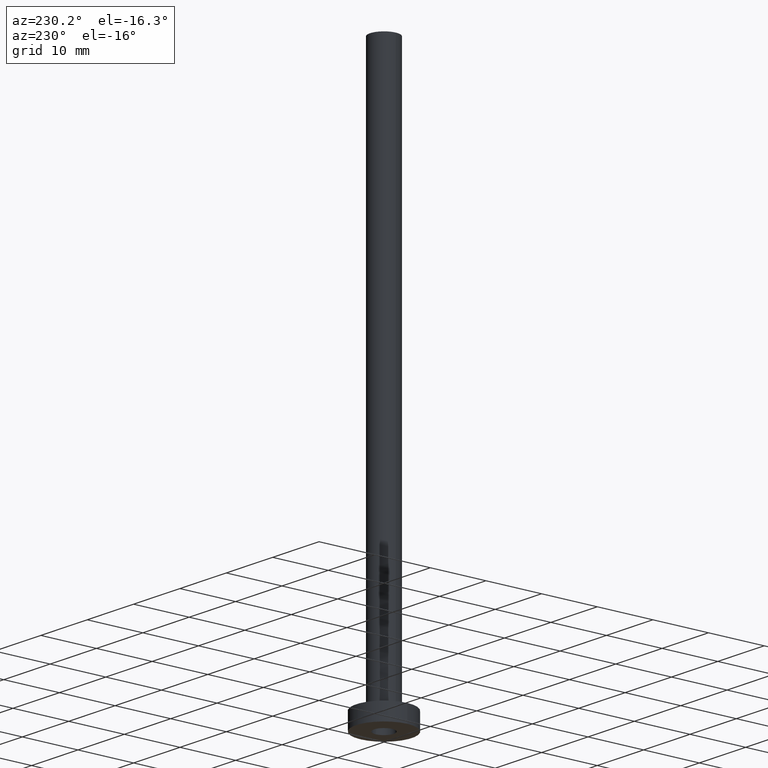
[diagram: clean part render]
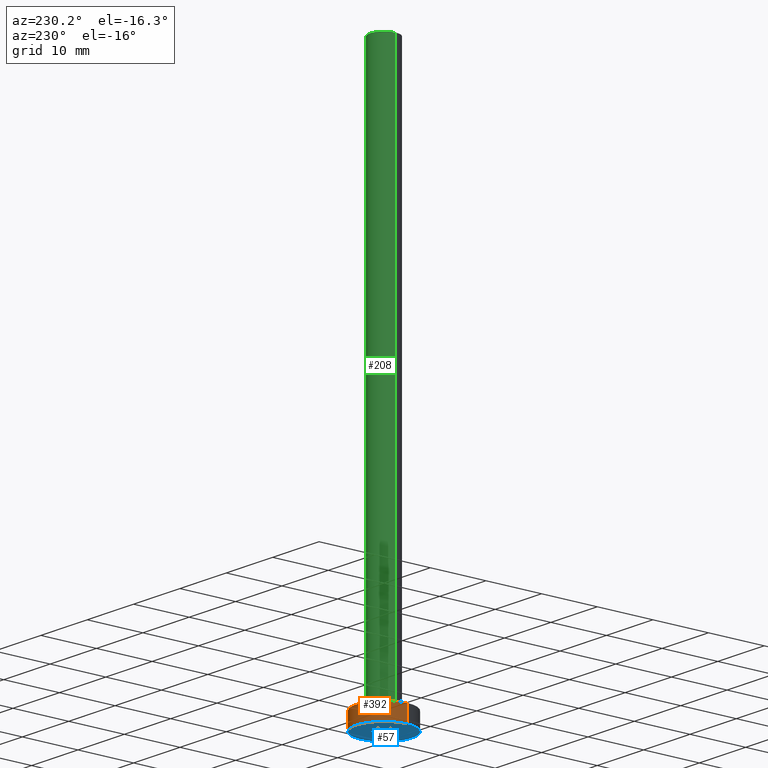
[diagram: same view with three faces highlighted in distinct colors, each labeled with its STEP entity id]
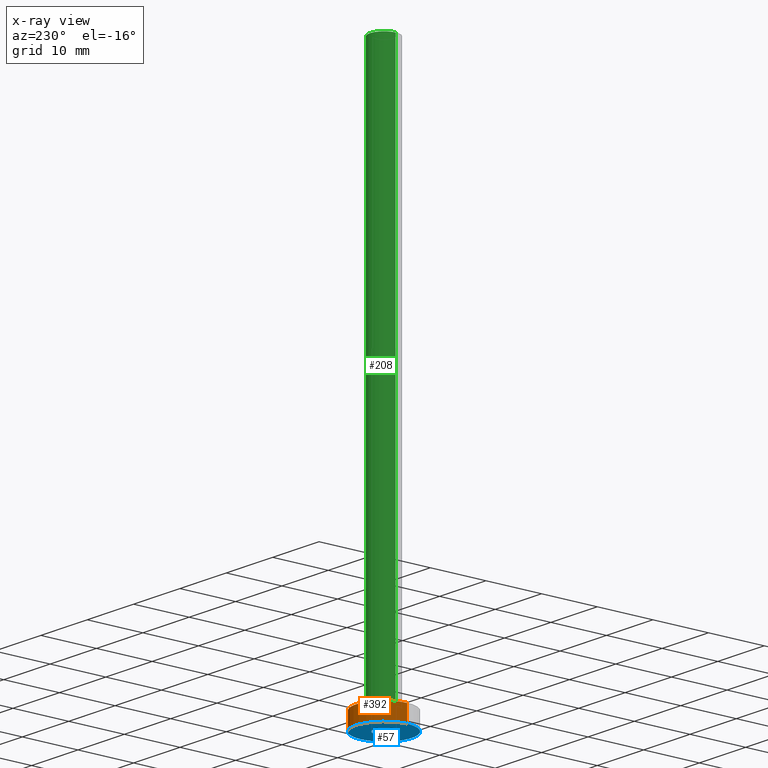
[diagram: x-ray of the same camera — body ghosted, the three highlighted faces saturated]
A machine part, auxiliary view with three faces highlighted in distinct colors.
The next image is the same camera in x-ray (body ghosted, the three faces saturated) — at least one of them is partly hidden behind the body in this view.
Their STEP definitions:

[orange] entity #392 — the highlighted cylindrical surface (edge-blend (fillet) strip) has radius 5 mm, axis along (-0, -0, -1).
#14 = ORIENTED_EDGE ( 'NONE', *, *, #307, .T. ) ;
#18 = AXIS2_PLACEMENT_3D ( 'NONE', #83, #49, #253 ) ;
#31 = FACE_OUTER_BOUND ( 'NONE', #41, .T. ) ;
#41 = EDGE_LOOP ( 'NONE', ( #276, #14, #287, #68 ) ) ;
#43 = VECTOR ( 'NONE', #209, 1000.000000000000000 ) ;
#49 = DIRECTION ( 'NONE',  ( 0.000000000000000000, 0.000000000000000000, 1.000000000000000000 ) ) ;
#50 = VECTOR ( 'NONE', #272, 1000.000000000000000 ) ;
#52 = CARTESIAN_POINT ( 'NONE',  ( 5.000000000000000000, 6.123233995736766282E-16, 3.000000000000000000 ) ) ;
#53 = VERTEX_POINT ( 'NONE', #52 ) ;
#55 = DIRECTION ( 'NONE',  ( 0.000000000000000000, 0.000000000000000000, 1.000000000000000000 ) ) ;
#68 = ORIENTED_EDGE ( 'NONE', *, *, #428, .F. ) ;
#76 = LINE ( 'NONE', #203, #43 ) ;
#78 = AXIS2_PLACEMENT_3D ( 'NONE', #80, #55, #365 ) ;
#80 = CARTESIAN_POINT ( 'NONE',  ( 0.000000000000000000, 0.000000000000000000, 0.000000000000000000 ) ) ;
#83 = CARTESIAN_POINT ( 'NONE',  ( 0.000000000000000000, 0.000000000000000000, 3.000000000000000000 ) ) ;
#103 = DIRECTION ( 'NONE',  ( -0.000000000000000000, -0.000000000000000000, -1.000000000000000000 ) ) ;
#106 = EDGE_CURVE ( 'NONE', #53, #416, #245, .T. ) ;
#110 = LINE ( 'NONE', #422, #50 ) ;
#147 = AXIS2_PLACEMENT_3D ( 'NONE', #277, #103, #386 ) ;
#203 = CARTESIAN_POINT ( 'NONE',  ( 5.000000000000000000, 6.123233995736766282E-16, 3.000000000000000000 ) ) ;
#209 = DIRECTION ( 'NONE',  ( -0.000000000000000000, -0.000000000000000000, -1.000000000000000000 ) ) ;
#245 = CIRCLE ( 'NONE', #18, 5.000000000000000000 ) ;
#253 = DIRECTION ( 'NONE',  ( 1.000000000000000000, 0.000000000000000000, 0.000000000000000000 ) ) ;
#256 = EDGE_CURVE ( 'NONE', #395, #273, #269, .T. ) ;
#269 = CIRCLE ( 'NONE', #78, 5.000000000000000000 ) ;
#272 = DIRECTION ( 'NONE',  ( -0.000000000000000000, -0.000000000000000000, -1.000000000000000000 ) ) ;
#273 = VERTEX_POINT ( 'NONE', #402 ) ;
#276 = ORIENTED_EDGE ( 'NONE', *, *, #106, .F. ) ;
#277 = CARTESIAN_POINT ( 'NONE',  ( 0.000000000000000000, 0.000000000000000000, 3.000000000000000000 ) ) ;
#287 = ORIENTED_EDGE ( 'NONE', *, *, #256, .T. ) ;
#307 = EDGE_CURVE ( 'NONE', #53, #395, #76, .T. ) ;
#348 = CARTESIAN_POINT ( 'NONE',  ( -5.000000000000000000, 0.000000000000000000, 3.000000000000000000 ) ) ;
#365 = DIRECTION ( 'NONE',  ( 1.000000000000000000, 0.000000000000000000, 0.000000000000000000 ) ) ;
#386 = DIRECTION ( 'NONE',  ( -1.000000000000000000, 0.000000000000000000, 0.000000000000000000 ) ) ;
#391 = CARTESIAN_POINT ( 'NONE',  ( 5.000000000000000000, 6.123233995736766282E-16, 0.000000000000000000 ) ) ;
#392 = ADVANCED_FACE ( 'NONE', ( #31 ), #460, .T. ) ;
#395 = VERTEX_POINT ( 'NONE', #391 ) ;
#402 = CARTESIAN_POINT ( 'NONE',  ( -5.000000000000000000, 0.000000000000000000, 0.000000000000000000 ) ) ;
#416 = VERTEX_POINT ( 'NONE', #348 ) ;
#422 = CARTESIAN_POINT ( 'NONE',  ( -5.000000000000000000, 0.000000000000000000, 3.000000000000000000 ) ) ;
#428 = EDGE_CURVE ( 'NONE', #416, #273, #110, .T. ) ;
#460 = CYLINDRICAL_SURFACE ( 'NONE', #147, 5.000000000000000000 ) ;

[blue] entity #57 — the highlighted planar face has unit normal (0, 0, 1).
#11 = ORIENTED_EDGE ( 'NONE', *, *, #404, .F. ) ;
#20 = VERTEX_POINT ( 'NONE', #146 ) ;
#23 = EDGE_LOOP ( 'NONE', ( #11, #257 ) ) ;
#34 = CARTESIAN_POINT ( 'NONE',  ( -1.750000000000000000, 0.000000000000000000, 0.000000000000000000 ) ) ;
#39 = ORIENTED_EDGE ( 'NONE', *, *, #45, .F. ) ;
#40 = CIRCLE ( 'NONE', #291, 1.750000000000000000 ) ;
#45 = EDGE_CURVE ( 'NONE', #20, #417, #258, .T. ) ;
#47 = DIRECTION ( 'NONE',  ( 1.000000000000000000, 0.000000000000000000, -0.000000000000000000 ) ) ;
#51 = EDGE_CURVE ( 'NONE', #417, #20, #40, .T. ) ;
#54 = CARTESIAN_POINT ( 'NONE',  ( 0.000000000000000000, 0.000000000000000000, 0.000000000000000000 ) ) ;
#55 = DIRECTION ( 'NONE',  ( 0.000000000000000000, 0.000000000000000000, 1.000000000000000000 ) ) ;
#57 = ADVANCED_FACE ( 'NONE', ( #114, #330 ), #119, .F. ) ;
#65 = AXIS2_PLACEMENT_3D ( 'NONE', #236, #454, #310 ) ;
#78 = AXIS2_PLACEMENT_3D ( 'NONE', #80, #55, #365 ) ;
#80 = CARTESIAN_POINT ( 'NONE',  ( 0.000000000000000000, 0.000000000000000000, 0.000000000000000000 ) ) ;
#114 = FACE_BOUND ( 'NONE', #380, .T. ) ;
#118 = DIRECTION ( 'NONE',  ( -0.000000000000000000, -0.000000000000000000, -1.000000000000000000 ) ) ;
#119 = PLANE ( 'NONE',  #266 ) ;
#146 = CARTESIAN_POINT ( 'NONE',  ( 1.750000000000000000, 2.143131898507868297E-16, 0.000000000000000000 ) ) ;
#162 = CIRCLE ( 'NONE', #65, 5.000000000000000000 ) ;
#215 = DIRECTION ( 'NONE',  ( 1.000000000000000000, 0.000000000000000000, 0.000000000000000000 ) ) ;
#225 = ORIENTED_EDGE ( 'NONE', *, *, #51, .F. ) ;
#236 = CARTESIAN_POINT ( 'NONE',  ( 0.000000000000000000, 0.000000000000000000, 0.000000000000000000 ) ) ;
#250 = DIRECTION ( 'NONE',  ( 1.000000000000000000, 0.000000000000000000, 0.000000000000000000 ) ) ;
#256 = EDGE_CURVE ( 'NONE', #395, #273, #269, .T. ) ;
#257 = ORIENTED_EDGE ( 'NONE', *, *, #256, .F. ) ;
#258 = CIRCLE ( 'NONE', #350, 1.750000000000000000 ) ;
#266 = AXIS2_PLACEMENT_3D ( 'NONE', #285, #326, #47 ) ;
#269 = CIRCLE ( 'NONE', #78, 5.000000000000000000 ) ;
#273 = VERTEX_POINT ( 'NONE', #402 ) ;
#285 = CARTESIAN_POINT ( 'NONE',  ( 0.000000000000000000, 0.000000000000000000, 0.000000000000000000 ) ) ;
#291 = AXIS2_PLACEMENT_3D ( 'NONE', #54, #408, #215 ) ;
#292 = CARTESIAN_POINT ( 'NONE',  ( 0.000000000000000000, 0.000000000000000000, 0.000000000000000000 ) ) ;
#310 = DIRECTION ( 'NONE',  ( 1.000000000000000000, 0.000000000000000000, 0.000000000000000000 ) ) ;
#326 = DIRECTION ( 'NONE',  ( 0.000000000000000000, 0.000000000000000000, 1.000000000000000000 ) ) ;
#330 = FACE_OUTER_BOUND ( 'NONE', #23, .T. ) ;
#350 = AXIS2_PLACEMENT_3D ( 'NONE', #292, #118, #250 ) ;
#365 = DIRECTION ( 'NONE',  ( 1.000000000000000000, 0.000000000000000000, 0.000000000000000000 ) ) ;
#380 = EDGE_LOOP ( 'NONE', ( #225, #39 ) ) ;
#391 = CARTESIAN_POINT ( 'NONE',  ( 5.000000000000000000, 6.123233995736766282E-16, 0.000000000000000000 ) ) ;
#395 = VERTEX_POINT ( 'NONE', #391 ) ;
#402 = CARTESIAN_POINT ( 'NONE',  ( -5.000000000000000000, 0.000000000000000000, 0.000000000000000000 ) ) ;
#404 = EDGE_CURVE ( 'NONE', #273, #395, #162, .T. ) ;
#408 = DIRECTION ( 'NONE',  ( -0.000000000000000000, -0.000000000000000000, -1.000000000000000000 ) ) ;
#417 = VERTEX_POINT ( 'NONE', #34 ) ;
#454 = DIRECTION ( 'NONE',  ( 0.000000000000000000, 0.000000000000000000, 1.000000000000000000 ) ) ;

[green] entity #208 — the highlighted cylindrical surface (edge-blend (fillet) strip) has radius 2.5 mm, axis along (-0, -0, -1).
#6 = ORIENTED_EDGE ( 'NONE', *, *, #325, .T. ) ;
#8 = DIRECTION ( 'NONE',  ( 0.000000000000000000, 0.000000000000000000, 1.000000000000000000 ) ) ;
#26 = VERTEX_POINT ( 'NONE', #82 ) ;
#35 = VECTOR ( 'NONE', #64, 1000.000000000000000 ) ;
#64 = DIRECTION ( 'NONE',  ( -0.000000000000000000, -0.000000000000000000, -1.000000000000000000 ) ) ;
#81 = CARTESIAN_POINT ( 'NONE',  ( 0.000000000000000000, 0.000000000000000000, 3.299999999999997158 ) ) ;
#82 = CARTESIAN_POINT ( 'NONE',  ( -2.500000000000000000, 0.000000000000000000, 100.0000000000000000 ) ) ;
#93 = DIRECTION ( 'NONE',  ( 1.000000000000000000, 0.000000000000000000, 0.000000000000000000 ) ) ;
#120 = ORIENTED_EDGE ( 'NONE', *, *, #347, .F. ) ;
#132 = VERTEX_POINT ( 'NONE', #216 ) ;
#173 = VERTEX_POINT ( 'NONE', #301 ) ;
#177 = EDGE_CURVE ( 'NONE', #132, #331, #255, .T. ) ;
#183 = DIRECTION ( 'NONE',  ( -1.000000000000000000, 0.000000000000000000, 0.000000000000000000 ) ) ;
#188 = CARTESIAN_POINT ( 'NONE',  ( 2.500000000000000000, 3.061616997868382648E-16, 100.0000000000000000 ) ) ;
#195 = ORIENTED_EDGE ( 'NONE', *, *, #433, .F. ) ;
#197 = CARTESIAN_POINT ( 'NONE',  ( 0.000000000000000000, 0.000000000000000000, 100.0000000000000000 ) ) ;
#199 = EDGE_LOOP ( 'NONE', ( #195, #248, #6, #120 ) ) ;
#208 = ADVANCED_FACE ( 'NONE', ( #306 ), #297, .T. ) ;
#216 = CARTESIAN_POINT ( 'NONE',  ( 2.500000000000000000, 3.061616997868382648E-16, 100.0000000000000000 ) ) ;
#218 = DIRECTION ( 'NONE',  ( -0.000000000000000000, -0.000000000000000000, -1.000000000000000000 ) ) ;
#241 = DIRECTION ( 'NONE',  ( 0.000000000000000000, 0.000000000000000000, 1.000000000000000000 ) ) ;
#246 = CARTESIAN_POINT ( 'NONE',  ( -2.500000000000000000, 0.000000000000000000, 100.0000000000000000 ) ) ;
#248 = ORIENTED_EDGE ( 'NONE', *, *, #177, .T. ) ;
#252 = VECTOR ( 'NONE', #361, 1000.000000000000000 ) ;
#255 = LINE ( 'NONE', #188, #35 ) ;
#296 = AXIS2_PLACEMENT_3D ( 'NONE', #378, #218, #183 ) ;
#297 = CYLINDRICAL_SURFACE ( 'NONE', #296, 2.500000000000000000 ) ;
#301 = CARTESIAN_POINT ( 'NONE',  ( -2.500000000000000000, 0.000000000000000000, 3.299999999999997158 ) ) ;
#302 = CIRCLE ( 'NONE', #425, 2.500000000000000000 ) ;
#306 = FACE_OUTER_BOUND ( 'NONE', #199, .T. ) ;
#309 = CIRCLE ( 'NONE', #449, 2.500000000000000000 ) ;
#316 = DIRECTION ( 'NONE',  ( 1.000000000000000000, 0.000000000000000000, 0.000000000000000000 ) ) ;
#322 = CARTESIAN_POINT ( 'NONE',  ( 2.500000000000000000, 3.061616997868382648E-16, 3.299999999999997158 ) ) ;
#325 = EDGE_CURVE ( 'NONE', #331, #173, #309, .T. ) ;
#331 = VERTEX_POINT ( 'NONE', #322 ) ;
#347 = EDGE_CURVE ( 'NONE', #26, #173, #437, .T. ) ;
#361 = DIRECTION ( 'NONE',  ( -0.000000000000000000, -0.000000000000000000, -1.000000000000000000 ) ) ;
#378 = CARTESIAN_POINT ( 'NONE',  ( 0.000000000000000000, 0.000000000000000000, 100.0000000000000000 ) ) ;
#425 = AXIS2_PLACEMENT_3D ( 'NONE', #197, #241, #93 ) ;
#433 = EDGE_CURVE ( 'NONE', #132, #26, #302, .T. ) ;
#437 = LINE ( 'NONE', #246, #252 ) ;
#449 = AXIS2_PLACEMENT_3D ( 'NONE', #81, #8, #316 ) ;